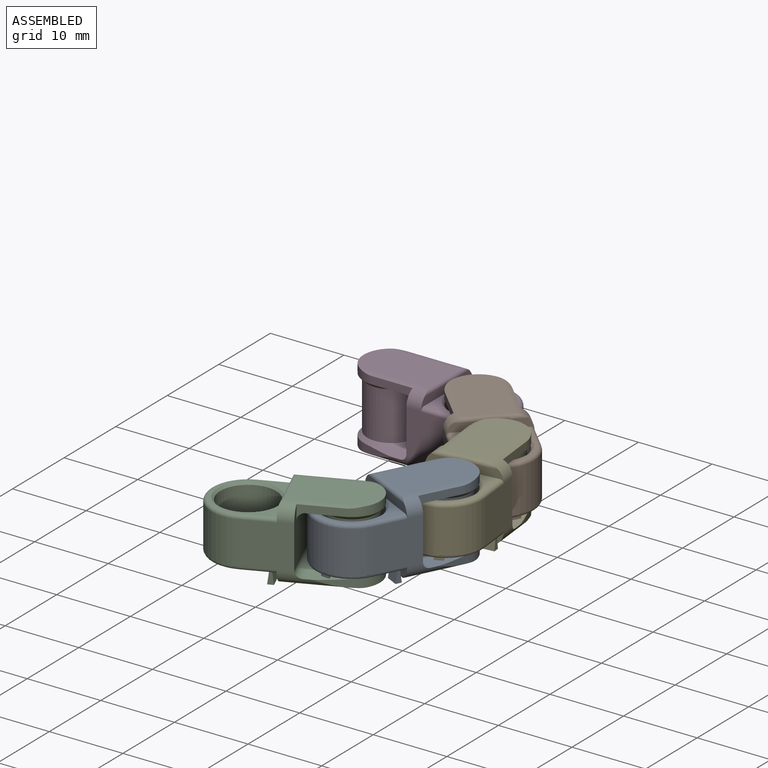
[diagram: assembled view]
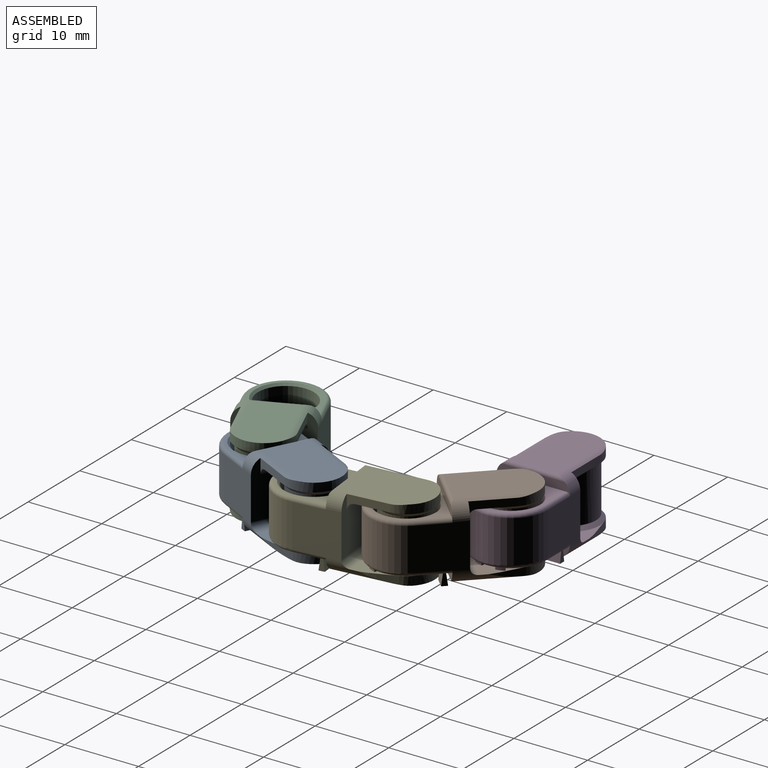
[diagram: assembled view, second angle]
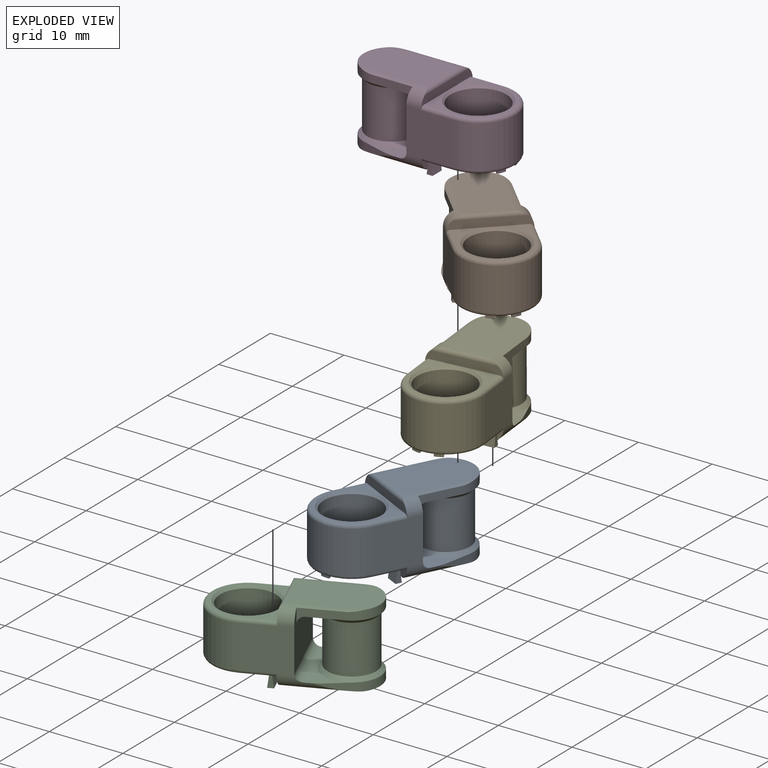
[diagram: exploded view]
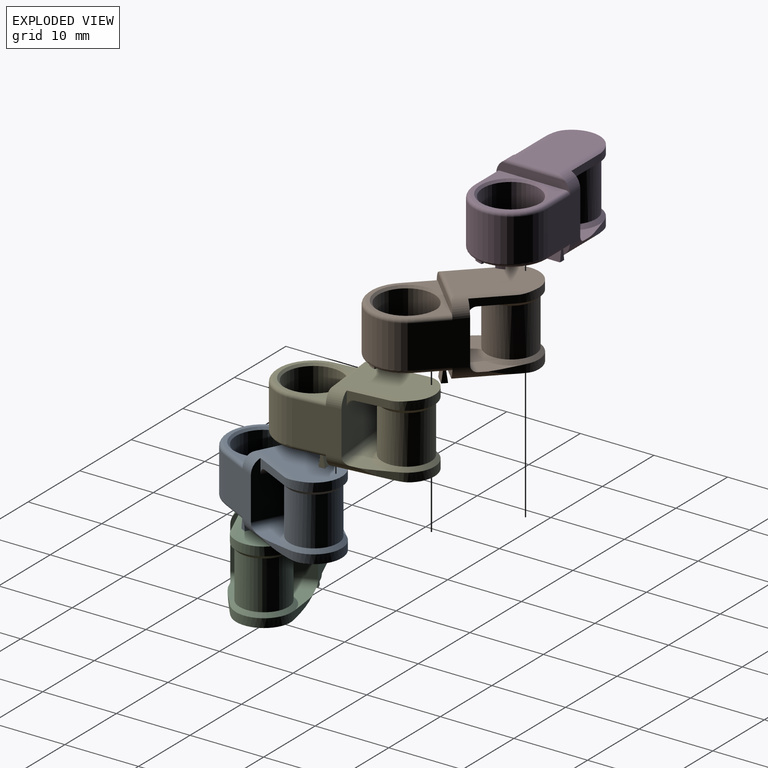
[diagram: exploded view, second angle]
ASSEMBLY  parts=5 mates=8
PART A: 62 faces, bbox 21.2x11x10.2 mm
  f0: plane 9x8.8mm, normal (0,0,-1), area 15.7mm2, adj f7,f28,f29,f30,f34,f42,f44,f46
  f1: plane 9.67x5.58mm, normal (0,0,1), area 18.3mm2, adj f10,f12,f15,f18,f24,f37,f39,f40
  f2: plane 10.8x6mm, normal (0,0,-1), area 62.1mm2, adj f11,f14,f39,f40
  f3: plane 10.8x6mm, normal (0,0,1), area 62.1mm2, adj f9,f13,f38,f41
  f4: plane 6.13x6mm, normal (0,-1,0), area 35.9mm2, adj f5,f7,f16,f26,f28,f33,f40,f41
  f5: plane 10x1.6mm, normal (1,0,0), area 10.5mm2, adj f4,f13,f20,f21,f31,f33,f38,f41
  f6: plane 10x7.63mm, normal (-1,0,0), area 59.6mm2, adj f8,f15,f16,f17,f27,f36,f38,f41
  f7: plane 10x1.6mm, normal (1,0,0), area 10.5mm2, adj f0,f4,f14,f20,f28,f30,f39,f40
  f8: plane 5.5x2.03mm, normal (0,-1,0), area 5.9mm2, adj f6,f9,f19,f36,f41
  f9: cylinder r=3.8mm len=7.6mm, axis (0,0,-1), area 13.9mm2, adj f3,f8,f23,f27,f38,f41
  f10: plane 2.66x1.26mm, normal (-0.28,-0.96,0), area 2.4mm2, adj f1,f11,f37,f40
  f11: cylinder r=3.8mm len=7.29mm, axis (0,0,1), area 11.5mm2, adj f2,f10,f12,f24,f39,f40
  f12: plane 2.66x1.26mm, normal (-0.28,0.96,0), area 2.4mm2, adj f1,f11,f18,f39
  f13: cylinder r=0.5mm len=8.65mm, axis (0,1,0), area 5.8mm2, adj f3,f5,f38,f41
  f14: cylinder r=0.5mm len=8.65mm, axis (0,1,0), area 5.8mm2, adj f2,f7,f39,f40
  f15: cylinder r=1mm len=10mm, axis (0,-1,0), area 15.5mm2, adj f1,f6,f16,f17,f39,f40
  f16: cylinder r=15mm len=6.14mm, axis (0,0,1), area 1.1mm2, adj f4,f6,f15,f40,f41
  f17: cylinder r=15mm len=6.14mm, axis (0,0,1), area 1.1mm2, adj f6,f15,f20,f38,f39
  f18: cylinder r=15mm len=2.03mm, axis (0,0,1), area 0.7mm2, adj f1,f12,f39
  f19: plane 7.6x4.5mm, normal (0,0,-1), area 11.5mm2, adj f8,f23,f27,f36
  f20: plane 6.13x6mm, normal (0,1,0), area 35.9mm2, adj f5,f7,f17,f26,f30,f31,f38,f39
  f21: plane 9x8.8mm, normal (0,0,1), area 17.7mm2, adj f5,f31,f32,f33,f35
  f22: cylinder r=3.3mm len=6.6mm, axis (0,0,-1), area 136.8mm2, adj f23,f24
  f23: cone r=3.8mm half-angle=45deg, axis (0,0,1), area 15.8mm2, adj f9,f19,f22
  f24: cone r=3.8mm half-angle=45deg, axis (0,0,-1), area 15.8mm2, adj f1,f11,f22
  f25: cylinder r=3.8mm len=7.6mm, axis (0,0,-1), area 148mm2, adj f34,f35
  f26: cylinder r=5mm len=10mm, axis (0,0,-1), area 91.1mm2, adj f4,f20,f29,f32
  f27: plane 5.5x2.03mm, normal (0,1,0), area 5.9mm2, adj f6,f9,f19,f36,f38
  f28: cylinder r=0.5mm len=4.3mm, axis (-1,0,0), area 3.4mm2, adj f0,f4,f7,f29,f45
  f29: torus R=4.5mm, axis (0,0,1), area 11.9mm2, adj f0,f26,f28,f30
  f30: cylinder r=0.5mm len=4.3mm, axis (1,0,0), area 3.4mm2, adj f0,f7,f20,f29,f50
  f31: cylinder r=0.5mm len=4.3mm, axis (-1,0,0), area 3.4mm2, adj f5,f20,f21,f32
  f32: torus R=4.5mm, axis (0,0,-1), area 11.9mm2, adj f21,f26,f31,f33
  f33: cylinder r=0.5mm len=4.3mm, axis (1,0,0), area 3.4mm2, adj f4,f5,f21,f32
  f34: cone r=4.1mm half-angle=45deg, axis (0,0,-1), area 10.5mm2, adj f0,f25
  f35: cone r=4.1mm half-angle=45deg, axis (0,0,1), area 10.5mm2, adj f21,f25
  f36: cylinder r=1mm len=7.6mm, axis (0,-1,0), area 11.9mm2, adj f6,f8,f19,f27
  f37: cylinder r=15mm len=2.03mm, axis (0,0,1), area 0.7mm2, adj f1,f10,f40
  f38: cylinder r=2mm len=9.83mm, axis (-1,0,0), area 11.7mm2, adj f3,f5,f6,f9,f13,f17,f20,f27
  f39: cylinder r=2mm len=9.83mm, axis (-1,0,0), area 17.9mm2, adj f1,f2,f7,f11,f12,f14,f15,f17
  f40: cylinder r=2mm len=9.83mm, axis (-1,0,0), area 17.9mm2, adj f1,f2,f4,f7,f10,f11,f14,f15
  f41: cylinder r=2mm len=9.83mm, axis (-1,0,0), area 11.7mm2, adj f3,f4,f5,f6,f8,f9,f13,f16
  f42: plane 1.8x1.6mm, normal (-0.99,0,0.14), area 2.9mm2, adj f0,f43,f45,f46
  f43: plane 1.8x0.8mm, normal (0,0,-1), area 1.4mm2, adj f42,f44,f45,f46
  f44: plane 1.8x1.6mm, normal (0.99,0,0.14), area 2.9mm2, adj f0,f43,f45,f46
  f45: plane 1.6x0.8mm, normal (0,-1,0), area 0.9mm2, adj f28,f42,f43,f44
  f46: plane 1.6x0.8mm, normal (0,1,0), area 0.9mm2, adj f0,f42,f43,f44
  f47: plane 1.8x1.6mm, normal (-0.99,0,0.14), area 2.9mm2, adj f0,f48,f50,f51
  f48: plane 1.8x0.8mm, normal (0,0,-1), area 1.4mm2, adj f47,f49,f50,f51
  f49: plane 1.8x1.6mm, normal (0.99,0,0.14), area 2.9mm2, adj f0,f48,f50,f51
  f50: plane 1.6x0.8mm, normal (0,1,0), area 0.9mm2, adj f30,f47,f48,f49
  f51: plane 1.6x0.8mm, normal (0,-1,0), area 0.9mm2, adj f0,f47,f48,f49
  f52: plane 0.4x0.34mm, normal (0.21,0.98,0), area 0.1mm2, adj f0,f53,f55,f56
  f53: cylinder r=4.47mm len=1.1mm, axis (0,0,1), area 0.5mm2, adj f0,f52,f54,f56
  f54: plane 0.4x0.31mm, normal (-0.45,-0.89,0), area 0.1mm2, adj f0,f53,f55,f56
  f55: cylinder r=4.12mm len=1.02mm, axis (0,0,1), area 0.4mm2, adj f0,f52,f54,f56
  f56: plane 1.17x0.7mm, normal (0,0,-1), area 0.4mm2, adj f52,f53,f54,f55
  f57: plane 0.4x0.34mm, normal (0.21,-0.98,0), area 0.1mm2, adj f0,f58,f60,f61
  f58: cylinder r=4.12mm len=1.02mm, axis (0,0,1), area 0.4mm2, adj f0,f57,f59,f61
  f59: plane 0.4x0.31mm, normal (-0.45,0.89,0), area 0.1mm2, adj f0,f58,f60,f61
  f60: cylinder r=4.47mm len=1.1mm, axis (0,0,1), area 0.5mm2, adj f0,f57,f59,f61
  f61: plane 1.17x0.7mm, normal (0,0,-1), area 0.4mm2, adj f57,f58,f59,f60
PART B: same geometry as A
PART C: same geometry as A
PART D: same geometry as A
PART E: same geometry as A
PLACE A rot(axis=(0,0,-1),117deg) t=(13.38,-24.97,0)mm
PLACE B rot(axis=(0,0,-1),44.9deg) t=(10.19,-3.88,0)mm
PLACE C rot(axis=(0,0,-1),156.9deg) t=(5.46,-32.74,0)mm
PLACE D at identity fixed
PLACE E rot(axis=(0,0,-1),84.1deg) t=(15.22,-13.81,0)mm
MATE planar B.f19 <-> D.f19  axis (0,0,-1) through (8.78,-2.48,3.8)mm
MATE planar A.f19 <-> E.f19  axis (0,0,-1) through (11.47,-20.35,3.8)mm
MATE planar C.f19 <-> A.f19  axis (0,0,-1) through (4.89,-28.85,3.8)mm
MATE planar E.f19 <-> B.f19  axis (0,0,-1) through (11.34,-13.2,3.8)mm
MATE cylindrical C.f9 <-> A.f25  axis (0,0,-1) through (10.52,-30.59,0)mm
MATE cylindrical A.f9 <-> E.f25  axis (0,0,-1) through (15.87,-20.07,0)mm
MATE cylindrical B.f9 <-> D.f25  axis (0,0,-1) through (6.3,0,0)mm
MATE cylindrical E.f9 <-> B.f25  axis (0,0,-1) through (14.65,-8.33,0)mm
